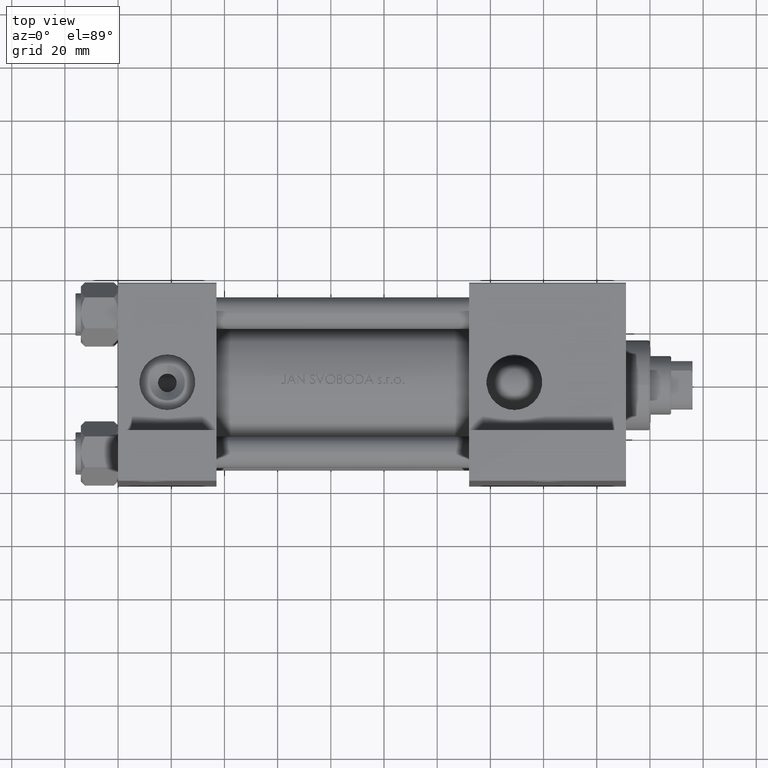
[diagram: clean part render]
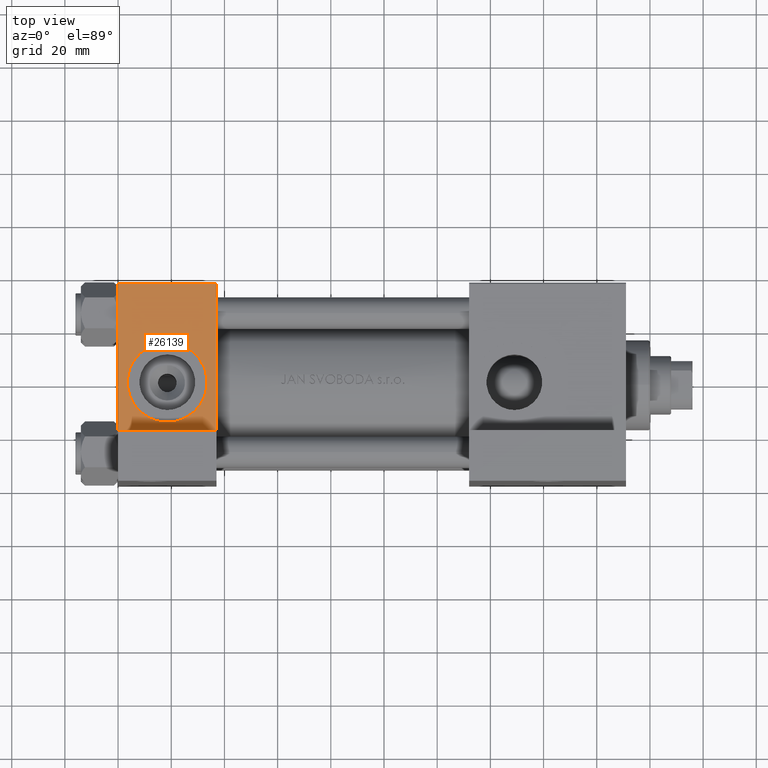
[diagram: same view with one face highlighted and labeled with its STEP entity id]
A machine part, top view. The second image highlights one B-rep face of the part: STEP entity #26139.
In plain terms, the highlighted planar face has unit normal (0, 0, -1).
Its self-contained STEP definition (entity closure, byte-faithful):
#2269 = CARTESIAN_POINT ( 'NONE',  ( -7.145701223179000102E-16, -37.50000000000001421, -18.49999999999999645 ) ) ;
#2739 = EDGE_CURVE ( 'NONE', #41958, #37540, #24144, .T. ) ;
#3325 = VECTOR ( 'NONE', #43602, 1000.000000000000000 ) ;
#4438 = EDGE_CURVE ( 'NONE', #20704, #22629, #45250, .T. ) ;
#5693 = EDGE_LOOP ( 'NONE', ( #17674, #31750, #17266, #14921 ) ) ;
#6001 = EDGE_CURVE ( 'NONE', #37540, #41958, #33006, .T. ) ;
#6580 = CARTESIAN_POINT ( 'NONE',  ( 18.50000000000000000, -37.50000000000000711, -15.00000000000000533 ) ) ;
#6803 = ORIENTED_EDGE ( 'NONE', *, *, #2739, .F. ) ;
#6925 = DIRECTION ( 'NONE',  ( 0.000000000000000000, -9.251858538542971581E-17, 1.000000000000000000 ) ) ;
#7464 = VERTEX_POINT ( 'NONE', #34223 ) ;
#7681 = DIRECTION ( 'NONE',  ( 0.000000000000000000, 0.000000000000000000, -1.000000000000000000 ) ) ;
#10156 = PLANE ( 'NONE',  #14128 ) ;
#11036 = VECTOR ( 'NONE', #19694, 1000.000000000000000 ) ;
#11511 = AXIS2_PLACEMENT_3D ( 'NONE', #43029, #35069, #47006 ) ;
#11972 = CARTESIAN_POINT ( 'NONE',  ( 37.00000000000000000, -37.50000000000000711, 36.99999999999999289 ) ) ;
#13710 = LINE ( 'NONE', #2269, #18457 ) ;
#14128 = AXIS2_PLACEMENT_3D ( 'NONE', #47774, #33092, #6925 ) ;
#14921 = ORIENTED_EDGE ( 'NONE', *, *, #4438, .T. ) ;
#16200 = VECTOR ( 'NONE', #27070, 1000.000000000000000 ) ;
#16440 = LINE ( 'NONE', #11972, #11036 ) ;
#17266 = ORIENTED_EDGE ( 'NONE', *, *, #29759, .T. ) ;
#17617 = CARTESIAN_POINT ( 'NONE',  ( 37.00000000000000000, -37.50000000000000711, 36.99999999999999289 ) ) ;
#17674 = ORIENTED_EDGE ( 'NONE', *, *, #39679, .F. ) ;
#17945 = CARTESIAN_POINT ( 'NONE',  ( -7.145701223179004046E-16, -37.50000000000000711, -18.50000000000000355 ) ) ;
#18457 = VECTOR ( 'NONE', #36403, 1000.000000000000000 ) ;
#19694 = DIRECTION ( 'NONE',  ( -1.000000000000000000, 0.000000000000000000, 0.000000000000000000 ) ) ;
#20704 = VERTEX_POINT ( 'NONE', #47536 ) ;
#22629 = VERTEX_POINT ( 'NONE', #17945 ) ;
#24144 = CIRCLE ( 'NONE', #30516, 15.00000000000000178 ) ;
#26085 = FACE_BOUND ( 'NONE', #41614, .T. ) ;
#26139 = ADVANCED_FACE ( 'NONE', ( #26085, #32597 ), #10156, .F. ) ;
#26611 = DIRECTION ( 'NONE',  ( 0.000000000000000000, -1.000000000000000000, -8.673617379884036705E-17 ) ) ;
#27070 = DIRECTION ( 'NONE',  ( 0.000000000000000000, 9.251858538542971581E-17, -1.000000000000000000 ) ) ;
#27928 = CARTESIAN_POINT ( 'NONE',  ( 37.00000000000000000, -37.50000000000000711, 37.49999999999999289 ) ) ;
#29759 = EDGE_CURVE ( 'NONE', #35889, #20704, #16440, .T. ) ;
#30516 = AXIS2_PLACEMENT_3D ( 'NONE', #49282, #26611, #7681 ) ;
#30823 = CARTESIAN_POINT ( 'NONE',  ( 0.000000000000000000, -37.50000000000000711, 37.49999999999999289 ) ) ;
#31750 = ORIENTED_EDGE ( 'NONE', *, *, #38936, .F. ) ;
#32597 = FACE_OUTER_BOUND ( 'NONE', #5693, .T. ) ;
#33006 = CIRCLE ( 'NONE', #11511, 15.00000000000000178 ) ;
#33092 = DIRECTION ( 'NONE',  ( -0.000000000000000000, 1.000000000000000000, 9.251858538542971581E-17 ) ) ;
#33425 = CARTESIAN_POINT ( 'NONE',  ( 18.50000000000000355, -37.50000000000000711, 14.99999999999999822 ) ) ;
#34223 = CARTESIAN_POINT ( 'NONE',  ( 37.00000000000000000, -37.50000000000000000, -18.50000000000000355 ) ) ;
#35069 = DIRECTION ( 'NONE',  ( 0.000000000000000000, -1.000000000000000000, -8.673617379884036705E-17 ) ) ;
#35889 = VERTEX_POINT ( 'NONE', #17617 ) ;
#36403 = DIRECTION ( 'NONE',  ( -1.000000000000000000, 0.000000000000000000, 0.000000000000000000 ) ) ;
#37540 = VERTEX_POINT ( 'NONE', #6580 ) ;
#38936 = EDGE_CURVE ( 'NONE', #35889, #7464, #39148, .T. ) ;
#39148 = LINE ( 'NONE', #27928, #3325 ) ;
#39679 = EDGE_CURVE ( 'NONE', #7464, #22629, #13710, .T. ) ;
#41614 = EDGE_LOOP ( 'NONE', ( #48601, #6803 ) ) ;
#41958 = VERTEX_POINT ( 'NONE', #33425 ) ;
#43029 = CARTESIAN_POINT ( 'NONE',  ( 18.50000000000000000, -37.50000000000000711, -3.469446951953614978E-15 ) ) ;
#43602 = DIRECTION ( 'NONE',  ( 0.000000000000000000, 9.251858538542971581E-17, -1.000000000000000000 ) ) ;
#45250 = LINE ( 'NONE', #30823, #16200 ) ;
#47006 = DIRECTION ( 'NONE',  ( 0.000000000000000000, 0.000000000000000000, -1.000000000000000000 ) ) ;
#47536 = CARTESIAN_POINT ( 'NONE',  ( 0.000000000000000000, -37.50000000000000711, 36.99999999999999289 ) ) ;
#47774 = CARTESIAN_POINT ( 'NONE',  ( 37.00000000000000000, -37.50000000000000711, 37.49999999999999289 ) ) ;
#48601 = ORIENTED_EDGE ( 'NONE', *, *, #6001, .F. ) ;
#49282 = CARTESIAN_POINT ( 'NONE',  ( 18.50000000000000000, -37.50000000000000711, -3.469446951953614978E-15 ) ) ;